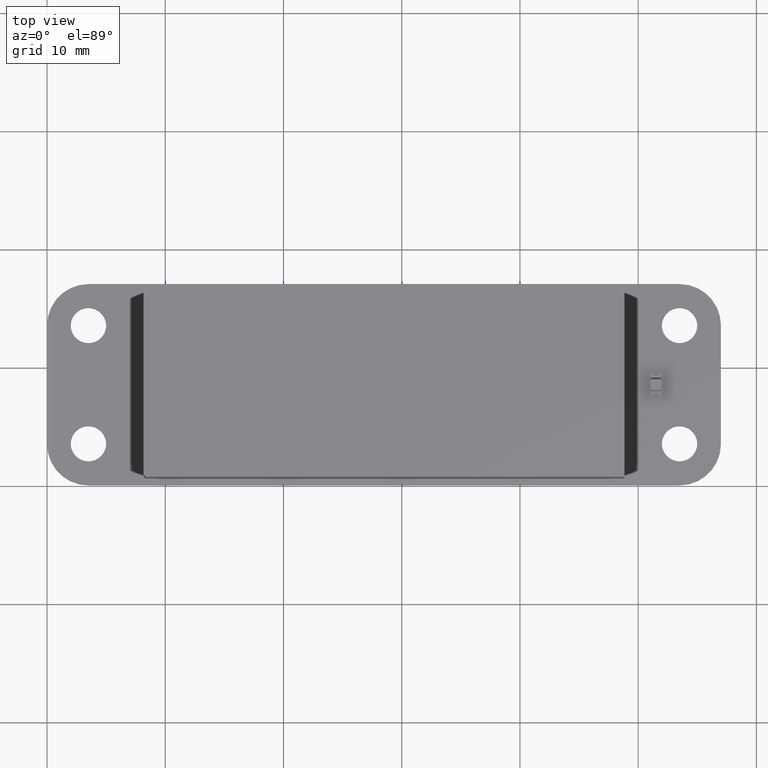
[diagram: clean part render]
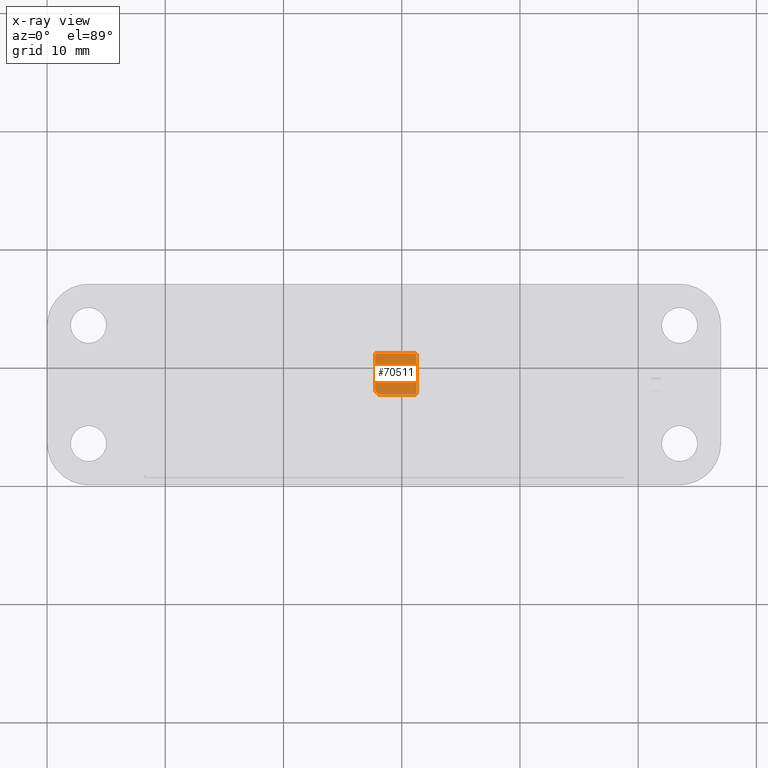
[diagram: x-ray — body ghosted, one internal face saturated and labeled with its STEP entity id]
A machine part, top view, then the same camera in x-ray: the body is ghosted and one INTERNAL B-rep face — a face not visible from any outside direction — is saturated and labeled: STEP entity #70511.
In plain terms, the highlighted planar face has unit normal (-0, -0, 1).
Its self-contained STEP definition (entity closure, byte-faithful):
#70295 = VERTEX_POINT('',#70296);
#70296 = CARTESIAN_POINT('',(1.635,0.,1.75));
#70302 = EDGE_CURVE('',#70303,#70295,#70305,.T.);
#70303 = VERTEX_POINT('',#70304);
#70304 = CARTESIAN_POINT('',(1.75,0.,1.635));
#70305 = CIRCLE('',#70306,0.115);
#70306 = AXIS2_PLACEMENT_3D('',#70307,#70308,#70309);
#70307 = CARTESIAN_POINT('',(1.635,0.,1.635));
#70308 = DIRECTION('',(0.,-1.,0.));
#70309 = DIRECTION('',(0.,0.,-1.));
#70334 = EDGE_CURVE('',#70335,#70303,#70337,.T.);
#70335 = VERTEX_POINT('',#70336);
#70336 = CARTESIAN_POINT('',(1.75,0.,-1.635));
#70337 = LINE('',#70338,#70339);
#70338 = CARTESIAN_POINT('',(1.75,0.,-1.635));
#70339 = VECTOR('',#70340,1.);
#70340 = DIRECTION('',(0.,0.,1.));
#70366 = EDGE_CURVE('',#70367,#70335,#70369,.T.);
#70367 = VERTEX_POINT('',#70368);
#70368 = CARTESIAN_POINT('',(1.635,0.,-1.75));
#70369 = CIRCLE('',#70370,0.115);
#70370 = AXIS2_PLACEMENT_3D('',#70371,#70372,#70373);
#70371 = CARTESIAN_POINT('',(1.635,0.,-1.635));
#70372 = DIRECTION('',(0.,-1.,0.));
#70373 = DIRECTION('',(0.,0.,-1.));
#70392 = VERTEX_POINT('',#70393);
#70393 = CARTESIAN_POINT('',(-1.45,-0.,-1.75));
#70406 = EDGE_CURVE('',#70392,#70367,#70407,.T.);
#70407 = LINE('',#70408,#70409);
#70408 = CARTESIAN_POINT('',(1.635,0.,-1.75));
#70409 = VECTOR('',#70410,1.);
#70410 = DIRECTION('',(1.,0.,1.989361784377E-16));
#70423 = VERTEX_POINT('',#70424);
#70424 = CARTESIAN_POINT('',(-1.75,-0.,-1.45));
#70430 = EDGE_CURVE('',#70431,#70423,#70433,.T.);
#70431 = VERTEX_POINT('',#70432);
#70432 = CARTESIAN_POINT('',(-1.75,0.,1.635));
#70433 = LINE('',#70434,#70435);
#70434 = CARTESIAN_POINT('',(-1.75,-0.,-1.635));
#70435 = VECTOR('',#70436,1.);
#70436 = DIRECTION('',(-0.,-0.,-1.));
#70470 = EDGE_CURVE('',#70471,#70431,#70473,.T.);
#70471 = VERTEX_POINT('',#70472);
#70472 = CARTESIAN_POINT('',(-1.635,0.,1.75));
#70473 = CIRCLE('',#70474,0.115);
#70474 = AXIS2_PLACEMENT_3D('',#70475,#70476,#70477);
#70475 = CARTESIAN_POINT('',(-1.635,0.,1.635));
#70476 = DIRECTION('',(0.,-1.,0.));
#70477 = DIRECTION('',(0.,0.,-1.));
#70500 = EDGE_CURVE('',#70295,#70471,#70501,.T.);
#70501 = LINE('',#70502,#70503);
#70502 = CARTESIAN_POINT('',(1.635,0.,1.75));
#70503 = VECTOR('',#70504,1.);
#70504 = DIRECTION('',(-1.,0.,-1.989361784377E-16));
#70511 = ADVANCED_FACE('',(#70512),#70527,.T.);
#70512 = FACE_BOUND('',#70513,.T.);
#70513 = EDGE_LOOP('',(#70514,#70520,#70521,#70522,#70523,#70524,#70525,
    #70526));
#70514 = ORIENTED_EDGE('',*,*,#70515,.F.);
#70515 = EDGE_CURVE('',#70392,#70423,#70516,.T.);
#70516 = LINE('',#70517,#70518);
#70517 = CARTESIAN_POINT('',(-1.75,-0.,-1.45));
#70518 = VECTOR('',#70519,1.);
#70519 = DIRECTION('',(-0.707106781187,-0.,0.707106781187));
#70520 = ORIENTED_EDGE('',*,*,#70406,.T.);
#70521 = ORIENTED_EDGE('',*,*,#70366,.T.);
#70522 = ORIENTED_EDGE('',*,*,#70334,.T.);
#70523 = ORIENTED_EDGE('',*,*,#70302,.T.);
#70524 = ORIENTED_EDGE('',*,*,#70500,.T.);
#70525 = ORIENTED_EDGE('',*,*,#70470,.T.);
#70526 = ORIENTED_EDGE('',*,*,#70430,.T.);
#70527 = PLANE('',#70528);
#70528 = AXIS2_PLACEMENT_3D('',#70529,#70530,#70531);
#70529 = CARTESIAN_POINT('',(1.635,0.,1.635));
#70530 = DIRECTION('',(0.,-1.,0.));
#70531 = DIRECTION('',(0.,-0.,-1.));